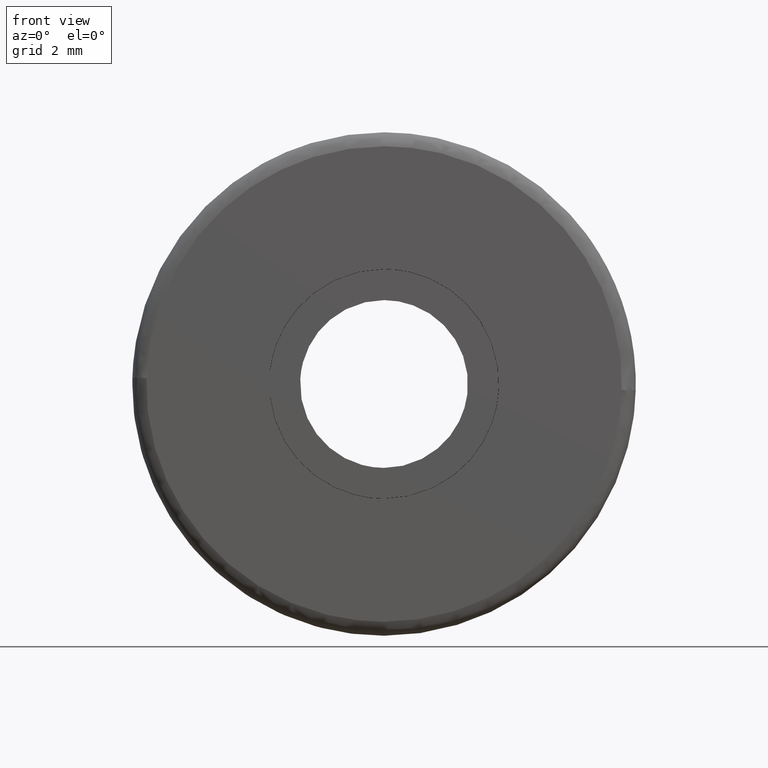
[diagram: clean part render]
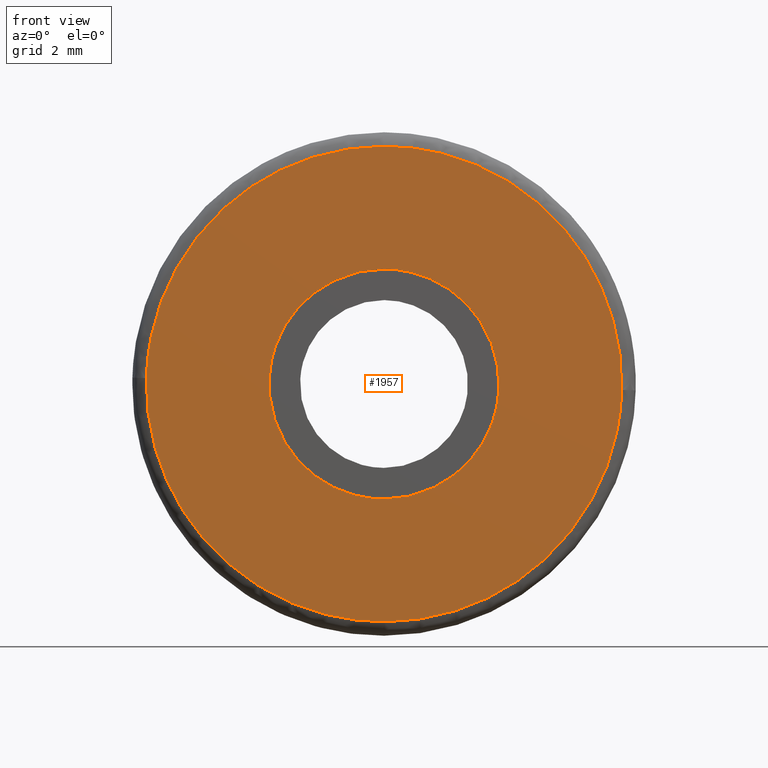
[diagram: same view with one face highlighted and labeled with its STEP entity id]
A machine part, front view. The second image highlights one B-rep face of the part: STEP entity #1957.
In plain terms, the highlighted face is a freeform B-spline surface patch.
Its self-contained STEP definition (entity closure, byte-faithful):
#449=CARTESIAN_POINT('',(-4.081269946623052,-1.277743E-016,0.485114030663204));
#450=VERTEX_POINT('',#449);
#456=CARTESIAN_POINT('',(0.0,0.0,-4.110000000000000));
#457=VERTEX_POINT('',#456);
#458=CARTESIAN_POINT('',(-4.081269946623051,-1.277743E-016,0.485114030663204));
#459=CARTESIAN_POINT('',(-4.110000000000002,0.0,0.243407759604978));
#460=CARTESIAN_POINT('',(-4.110000000000000,0.0,0.0));
#461=CARTESIAN_POINT('',(-4.110000000000000,0.0,-4.110000000000000));
#462=CARTESIAN_POINT('',(0.0,0.0,-4.110000000000000));
#470=(BOUNDED_CURVE()B_SPLINE_CURVE(2,(#458,#459,#460,#461,#462),.UNSPECIFIED.,.F.,.U.)B_SPLINE_CURVE_WITH_KNOTS((3,2,3),(0.229562749873293,0.250000000000000,0.500000000000000),.UNSPECIFIED.)CURVE()GEOMETRIC_REPRESENTATION_ITEM()RATIONAL_B_SPLINE_CURVE((0.956027295860903,0.976056272106773,1.0,0.707106781186547,1.0))REPRESENTATION_ITEM(''));
#471=EDGE_CURVE('',#450,#457,#470,.T.);
#473=CARTESIAN_POINT('',(4.102334070501771,-1.318390E-016,-0.250908696540646));
#474=VERTEX_POINT('',#473);
#475=CARTESIAN_POINT('',(0.0,0.0,-4.110000000000000));
#476=CARTESIAN_POINT('',(3.866303447532380,0.0,-4.109999999999999));
#477=CARTESIAN_POINT('',(4.102334070501771,-1.318390E-016,-0.250908696540646));
#485=(BOUNDED_CURVE()B_SPLINE_CURVE(2,(#475,#476,#477),.UNSPECIFIED.,.F.,.U.)B_SPLINE_CURVE_WITH_KNOTS((3,3),(0.500000000000000,0.739333029618709),.UNSPECIFIED.)CURVE()GEOMETRIC_REPRESENTATION_ITEM()RATIONAL_B_SPLINE_CURVE((1.0,0.719603914346404,0.976072186074425))REPRESENTATION_ITEM(''));
#486=EDGE_CURVE('',#457,#474,#485,.T.);
#564=CARTESIAN_POINT('',(0.0,0.0,4.110000000000000));
#565=VERTEX_POINT('',#564);
#566=CARTESIAN_POINT('',(4.102334070501771,-1.318390E-016,-0.250908696540646));
#567=CARTESIAN_POINT('',(4.109999999999999,0.0,-0.125571053963819));
#568=CARTESIAN_POINT('',(4.110000000000000,0.0,0.0));
#569=CARTESIAN_POINT('',(4.110000000000000,0.0,4.110000000000000));
#570=CARTESIAN_POINT('',(0.0,0.0,4.110000000000000));
#578=(BOUNDED_CURVE()B_SPLINE_CURVE(2,(#566,#567,#568,#569,#570),.UNSPECIFIED.,.F.,.U.)B_SPLINE_CURVE_WITH_KNOTS((3,2,3),(0.739333029618709,0.750000000000000,1.0),.UNSPECIFIED.)CURVE()GEOMETRIC_REPRESENTATION_ITEM()RATIONAL_B_SPLINE_CURVE((0.976072186074426,0.987502866840144,1.0,0.707106781186547,1.0))REPRESENTATION_ITEM(''));
#579=EDGE_CURVE('',#474,#565,#578,.T.);
#581=CARTESIAN_POINT('',(0.0,0.0,4.110000000000000));
#582=CARTESIAN_POINT('',(-3.650403312890115,0.0,4.110000000000000));
#583=CARTESIAN_POINT('',(-4.081269946623051,-1.277743E-016,0.485114030663204));
#591=(BOUNDED_CURVE()B_SPLINE_CURVE(2,(#581,#582,#583),.UNSPECIFIED.,.F.,.U.)B_SPLINE_CURVE_WITH_KNOTS((3,3),(0.0,0.229562749873293),.UNSPECIFIED.)CURVE()GEOMETRIC_REPRESENTATION_ITEM()RATIONAL_B_SPLINE_CURVE((1.0,0.731050509079775,0.956027295860903))REPRESENTATION_ITEM(''));
#592=EDGE_CURVE('',#565,#450,#591,.T.);
#1605=CARTESIAN_POINT('',(-8.497315609189514,-6.834411E-016,0.213605811287280));
#1606=VERTEX_POINT('',#1605);
#1607=CARTESIAN_POINT('',(0.0,-1.554312E-015,-8.500000000000000));
#1608=VERTEX_POINT('',#1607);
#1609=CARTESIAN_POINT('',(-8.497315609189512,-6.834411E-016,0.213605811287280));
#1610=CARTESIAN_POINT('',(-8.500000000000000,-1.554312E-015,0.106819773060561));
#1611=CARTESIAN_POINT('',(-8.500000000000000,-1.554312E-015,-1.775281E-016));
#1612=CARTESIAN_POINT('',(-8.500000000000002,-1.554312E-015,-8.500000000000002));
#1613=CARTESIAN_POINT('',(0.0,-1.554312E-015,-8.500000000000000));
#1621=(BOUNDED_CURVE()B_SPLINE_CURVE(2,(#1609,#1610,#1611,#1612,#1613),.UNSPECIFIED.,.F.,.U.)B_SPLINE_CURVE_WITH_KNOTS((3,2,3),(0.745579891769320,0.750000000000000,1.0),.UNSPECIFIED.)CURVE()GEOMETRIC_REPRESENTATION_ITEM()RATIONAL_B_SPLINE_CURVE((0.989826157680475,0.994821521091250,1.0,0.707106781186548,1.0))REPRESENTATION_ITEM(''));
#1622=EDGE_CURVE('',#1606,#1608,#1621,.T.);
#1639=CARTESIAN_POINT('',(8.497315609189515,-6.834411E-016,-0.213605811287280));
#1640=VERTEX_POINT('',#1639);
#1654=CARTESIAN_POINT('',(0.0,-1.554312E-015,-8.500000000000000));
#1655=CARTESIAN_POINT('',(8.289011947512430,-1.554312E-015,-8.500000000000000));
#1656=CARTESIAN_POINT('',(8.497315609189515,-6.834411E-016,-0.213605811287280));
#1664=(BOUNDED_CURVE()B_SPLINE_CURVE(2,(#1654,#1655,#1656),.UNSPECIFIED.,.F.,.U.)B_SPLINE_CURVE_WITH_KNOTS((3,3),(0.0,0.245579891769320),.UNSPECIFIED.)CURVE()GEOMETRIC_REPRESENTATION_ITEM()RATIONAL_B_SPLINE_CURVE((1.0,0.712285260095298,0.989826157680475))REPRESENTATION_ITEM(''));
#1665=EDGE_CURVE('',#1608,#1640,#1664,.T.);
#1693=CARTESIAN_POINT('',(0.0,-1.554312E-015,8.500000000000000));
#1694=VERTEX_POINT('',#1693);
#1695=CARTESIAN_POINT('',(0.0,-1.554312E-015,8.500000000000000));
#1696=CARTESIAN_POINT('',(-8.289011947512455,-1.554312E-015,8.500000000000000));
#1697=CARTESIAN_POINT('',(-8.497315609189514,-6.834411E-016,0.213605811287280));
#1705=(BOUNDED_CURVE()B_SPLINE_CURVE(2,(#1695,#1696,#1697),.UNSPECIFIED.,.F.,.U.)B_SPLINE_CURVE_WITH_KNOTS((3,3),(0.500000000000000,0.745579891769321),.UNSPECIFIED.)CURVE()GEOMETRIC_REPRESENTATION_ITEM()RATIONAL_B_SPLINE_CURVE((1.0,0.712285260095297,0.989826157680476))REPRESENTATION_ITEM(''));
#1706=EDGE_CURVE('',#1694,#1606,#1705,.T.);
#1708=CARTESIAN_POINT('',(8.497315609189515,-6.834411E-016,-0.213605811287280));
#1709=CARTESIAN_POINT('',(8.500000000000000,-1.554312E-015,-0.106819773060561));
#1710=CARTESIAN_POINT('',(8.500000000000000,-1.554312E-015,-1.775281E-016));
#1711=CARTESIAN_POINT('',(8.500000000000002,-1.554312E-015,8.500000000000002));
#1712=CARTESIAN_POINT('',(0.0,-1.554312E-015,8.500000000000000));
#1720=(BOUNDED_CURVE()B_SPLINE_CURVE(2,(#1708,#1709,#1710,#1711,#1712),.UNSPECIFIED.,.F.,.U.)B_SPLINE_CURVE_WITH_KNOTS((3,2,3),(0.245579891769320,0.250000000000000,0.500000000000000),.UNSPECIFIED.)CURVE()GEOMETRIC_REPRESENTATION_ITEM()RATIONAL_B_SPLINE_CURVE((0.989826157680475,0.994821521091250,1.0,0.707106781186548,1.0))REPRESENTATION_ITEM(''));
#1721=EDGE_CURVE('',#1640,#1694,#1720,.T.);
#1940=CARTESIAN_POINT('',(-9.346197246075215,-1.052693E-015,-9.349149967050700));
#1941=CARTESIAN_POINT('',(-9.346197246075215,-1.052693E-015,9.349150423026234));
#1942=CARTESIAN_POINT('',(9.346197853850589,-1.052693E-015,-9.349149967050700));
#1943=CARTESIAN_POINT('',(9.346197853850589,-1.052693E-015,9.349150423026234));
#1944=B_SPLINE_SURFACE_WITH_KNOTS('',1,1,((#1940,#1942),(#1941,#1943)),.UNSPECIFIED.,.F.,.F.,.U.,(2,2),(2,2),(0.0,18.698300390076930),(0.0,18.692395099925800),.UNSPECIFIED.);
#1945=ORIENTED_EDGE('',*,*,#1665,.T.);
#1946=ORIENTED_EDGE('',*,*,#1721,.T.);
#1947=ORIENTED_EDGE('',*,*,#1706,.T.);
#1948=ORIENTED_EDGE('',*,*,#1622,.T.);
#1949=EDGE_LOOP('',(#1945,#1946,#1947,#1948));
#1950=FACE_OUTER_BOUND('',#1949,.T.);
#1951=ORIENTED_EDGE('',*,*,#486,.F.);
#1952=ORIENTED_EDGE('',*,*,#471,.F.);
#1953=ORIENTED_EDGE('',*,*,#592,.F.);
#1954=ORIENTED_EDGE('',*,*,#579,.F.);
#1955=EDGE_LOOP('',(#1951,#1952,#1953,#1954));
#1956=FACE_BOUND('',#1955,.T.);
#1957=ADVANCED_FACE('',(#1950,#1956),#1944,.F.);